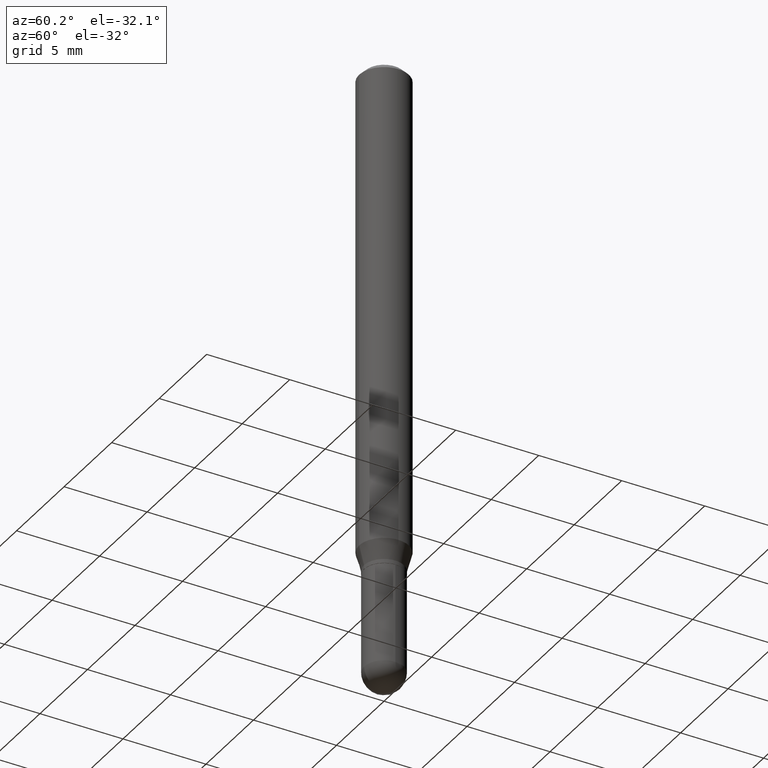
[diagram: clean part render]
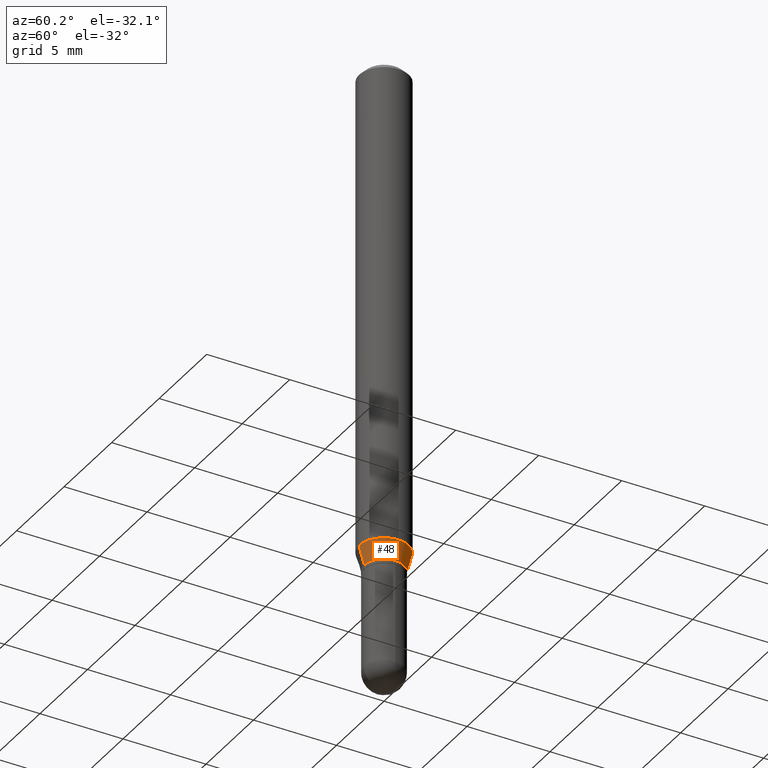
[diagram: same view with one face highlighted and labeled with its STEP entity id]
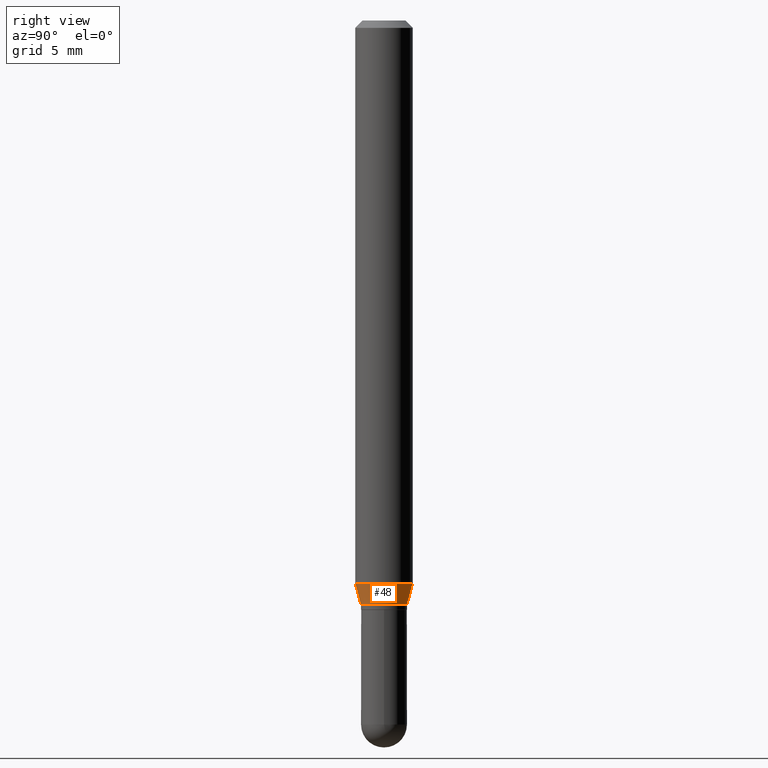
[diagram: same view with one face highlighted and labeled with its STEP entity id]
A machine part, auxiliary view. The second image highlights one B-rep face of the part: STEP entity #48.
A second angle (right view) of the same face is appended — the face is thin or edge-on in the first view.
In plain terms, the highlighted conical surface has half-angle 15 deg.
Its self-contained STEP definition (entity closure, byte-faithful):
#14 = DIRECTION ( 'NONE',  ( -6.982962677686265922E-15, -1.000000000000000000, 4.626330217890369336E-15 ) ) ;
#15 = FACE_OUTER_BOUND ( 'NONE', #26, .T. ) ;
#26 = EDGE_LOOP ( 'NONE', ( #109, #99, #392, #374 ) ) ;
#48 = ADVANCED_FACE ( 'NONE', ( #15 ), #396, .T. ) ;
#55 = VERTEX_POINT ( 'NONE', #136 ) ;
#64 = DIRECTION ( 'NONE',  ( -6.982962677686265922E-15, -1.000000000000000000, 2.890844437739957528E-15 ) ) ;
#83 = CARTESIAN_POINT ( 'NONE',  ( 4.195754854663673496E-16, 0.05904999999999594601, -1.158561800470687686 ) ) ;
#98 = LINE ( 'NONE', #246, #447 ) ;
#99 = ORIENTED_EDGE ( 'NONE', *, *, #263, .T. ) ;
#109 = ORIENTED_EDGE ( 'NONE', *, *, #155, .T. ) ;
#116 = DIRECTION ( 'NONE',  ( -1.807323732225331323E-15, -0.2588190451025183525, 0.9659258262890689783 ) ) ;
#118 = LINE ( 'NONE', #427, #287 ) ;
#128 = DIRECTION ( 'NONE',  ( -2.445509875133232403E-29, 3.491422525771973150E-15, 1.000000000000000000 ) ) ;
#136 = CARTESIAN_POINT ( 'NONE',  ( -4.123439461173456337E-16, -0.05905000000000405758, -1.158561800470687464 ) ) ;
#139 = VERTEX_POINT ( 'NONE', #337 ) ;
#150 = DIRECTION ( 'NONE',  ( 1.839019923739601499E-15, 0.2588190451025251249, 0.9659258262890670910 ) ) ;
#155 = EDGE_CURVE ( 'NONE', #139, #324, #398, .T. ) ;
#157 = CARTESIAN_POINT ( 'NONE',  ( 2.833274324003204060E-29, -4.045028767662292358E-15, -1.158561800470687464 ) ) ;
#170 = DIRECTION ( 'NONE',  ( -2.445509875133232403E-29, 3.491422525771973150E-15, 1.000000000000000000 ) ) ;
#246 = CARTESIAN_POINT ( 'NONE',  ( 3.357314426466771197E-16, 0.04724999999999585781, -1.202600000000000113 ) ) ;
#252 = AXIS2_PLACEMENT_3D ( 'NONE', #376, #170, #64 ) ;
#263 = EDGE_CURVE ( 'NONE', #324, #371, #98, .T. ) ;
#282 = DIRECTION ( 'NONE',  ( -6.982962677686265922E-15, -1.000000000000000000, 2.890844437739957528E-15 ) ) ;
#284 = CARTESIAN_POINT ( 'NONE',  ( 2.940970175835225274E-29, -4.198784729493374495E-15, -1.202599999999999891 ) ) ;
#287 = VECTOR ( 'NONE', #116, 39.37007874015748854 ) ;
#324 = VERTEX_POINT ( 'NONE', #379 ) ;
#334 = EDGE_CURVE ( 'NONE', #139, #55, #118, .T. ) ;
#337 = CARTESIAN_POINT ( 'NONE',  ( -3.299449865206470168E-16, -0.04725000000000425388, -1.202599999999999669 ) ) ;
#371 = VERTEX_POINT ( 'NONE', #83 ) ;
#372 = CIRCLE ( 'NONE', #438, 0.05904999999999999832 ) ;
#374 = ORIENTED_EDGE ( 'NONE', *, *, #334, .F. ) ;
#376 = CARTESIAN_POINT ( 'NONE',  ( 2.940970175835225274E-29, -4.198784729493374495E-15, -1.202599999999999891 ) ) ;
#379 = CARTESIAN_POINT ( 'NONE',  ( 3.776534640565222593E-16, 0.04724999999999585781, -1.202600000000000113 ) ) ;
#392 = ORIENTED_EDGE ( 'NONE', *, *, #393, .F. ) ;
#393 = EDGE_CURVE ( 'NONE', #55, #371, #372, .T. ) ;
#396 = CONICAL_SURFACE ( 'NONE', #405, 0.04725000000000005584, 0.2617993877991504625 ) ;
#398 = CIRCLE ( 'NONE', #252, 0.04725000000000005584 ) ;
#405 = AXIS2_PLACEMENT_3D ( 'NONE', #284, #128, #282 ) ;
#427 = CARTESIAN_POINT ( 'NONE',  ( -3.299449865206470168E-16, -0.04725000000000425388, -1.202599999999999669 ) ) ;
#438 = AXIS2_PLACEMENT_3D ( 'NONE', #157, #478, #14 ) ;
#447 = VECTOR ( 'NONE', #150, 39.37007874015748854 ) ;
#478 = DIRECTION ( 'NONE',  ( -2.445509875133232403E-29, 3.491422525771973150E-15, 1.000000000000000000 ) ) ;